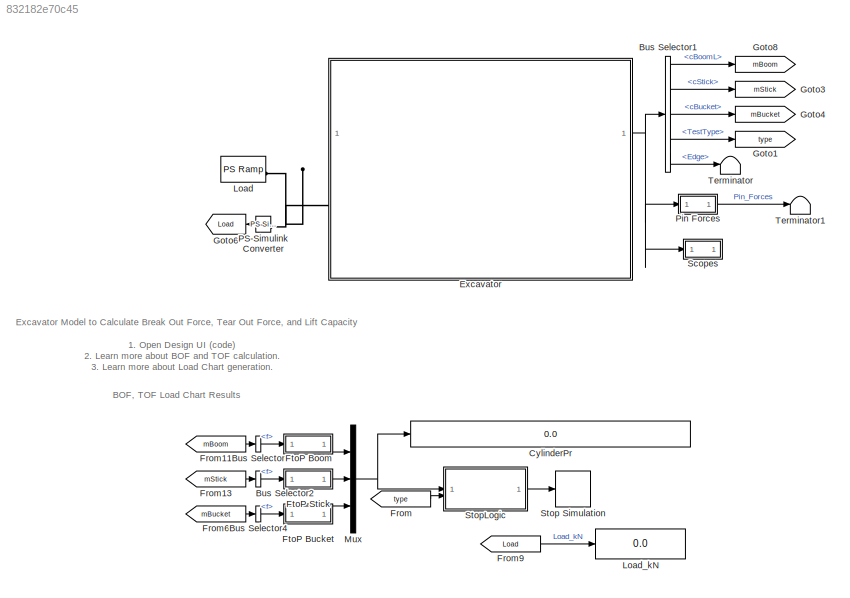
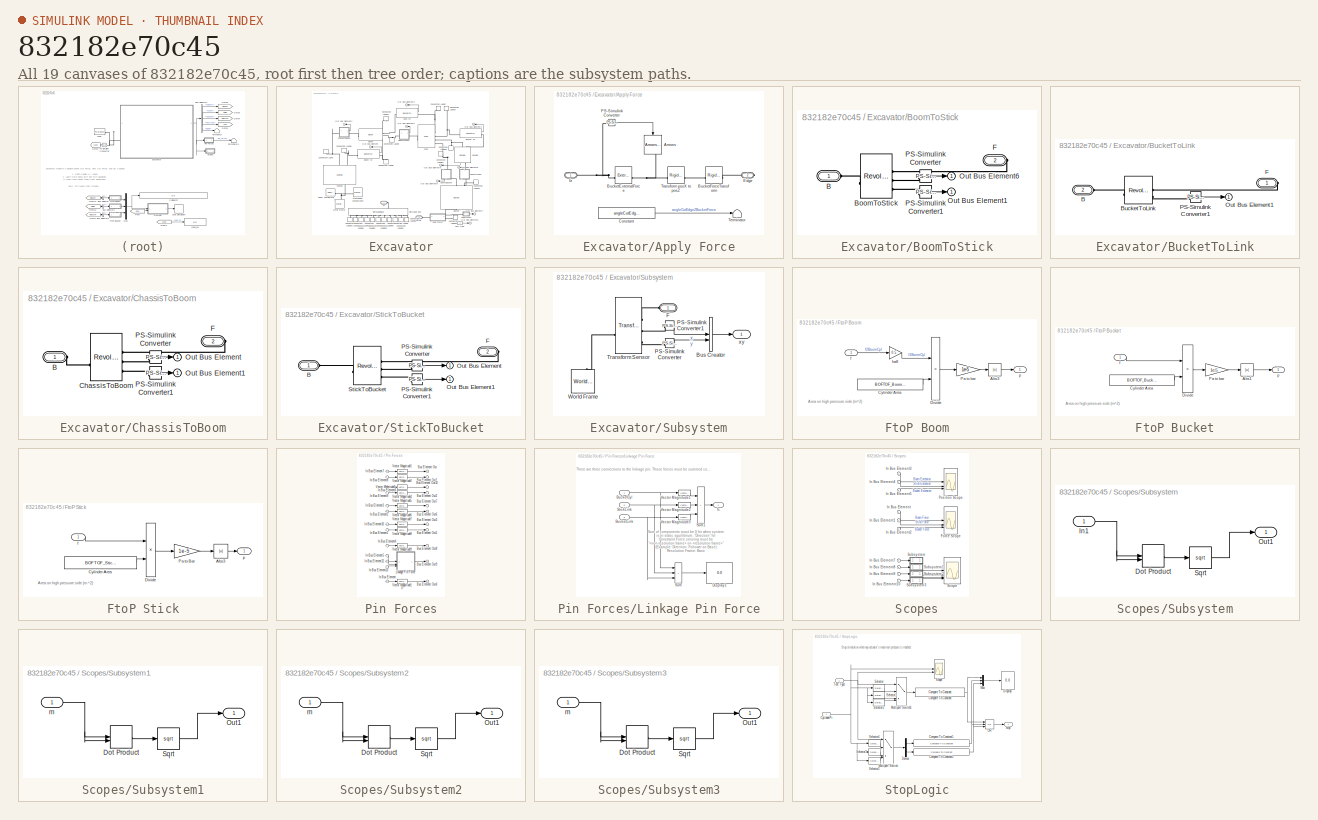
[diagram: thumbnail index - all 19 canvases of the model, root first then tree order]
MODEL slx_832182e70c45
KIND model
CONFIG AbsTol = 1e-3
CONFIG EnableMultiTasking = on
CONFIG PostLoadFcn = if(~exist('bucketForceAngleBOF','var'))\n   disp('Defining default force angles');\n   bucketForceAngleBOF = -11.7417;\n   bucketForceAngleTOF= -1.4472;\n   bucketForceAngleGravity = -55.5751;\nend
CONFIG SolverName = ode45
BLOCK [BusSelector] Bus Selector
  OutputSignals = f
BLOCK [BusSelector] Bus Selector1
  OutputSignals = cBoomL,cStick,cBucket,TestType,Edge
BLOCK [BusSelector] Bus Selector2
  OutputSignals = f
BLOCK [BusSelector] Bus Selector4
  OutputSignals = f
BLOCK [Display] CylinderPr
  Decimation = 1
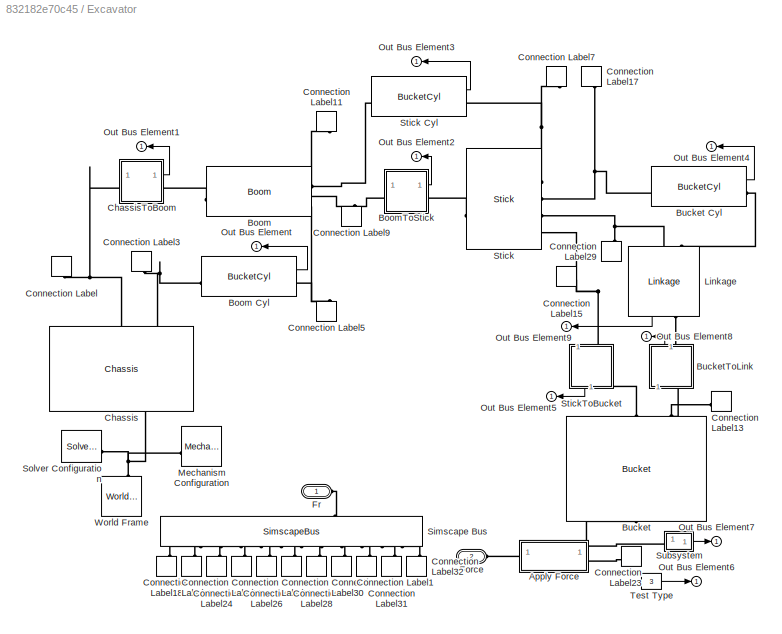
BLOCK [SubSystem] Excavator
  AttributesFormatString = Test Type: %<test_type>
BLOCK [SubSystem] Excavator/Apply Force
  AttributesFormatString = Test Type: %<test_type>
BLOCK [Reference] Excavator/Apply Force/Arrows  REF=Arrowhead_Lib/Arrows Variable PosNeg
  NameLocation = left
  SourceBlock = Arrowhead_Lib/Arrows Variable PosNeg
BLOCK [Reference] Excavator/Apply Force/BucketExternalForce  REF=sm_lib/Forces and
Torques/External Force
and Torque
  SourceBlock = sm_lib/Forces and\nTorques/External Force\nand Torque
  SourceType = External Force\nand Torque
BLOCK [Reference] Excavator/Apply Force/BucketForceTransform  REF=sm_lib/Frames and
Transforms/Rigid
Transform
  SourceBlock = sm_lib/Frames and\nTransforms/Rigid\nTransform
  SourceType = Rigid\nTransform
BLOCK [Constant] Excavator/Apply Force/Constant
  Value = angleCutEdge2BucketForce
BLOCK [PMIOPort] Excavator/Apply Force/Edge
  Port = 2
  Side = Right
BLOCK [Reference] Excavator/Apply Force/PS-Simulink Converter  REF=nesl_utility/PS-Simulink
Converter
  SourceBlock = nesl_utility/PS-Simulink\nConverter
  SourceType = PS-Simulink\nConverter
BLOCK [Terminator] Excavator/Apply Force/Terminator
BLOCK [Reference] Excavator/Apply Force/Transform posX to posZ  REF=sm_lib/Frames and
Transforms/Rigid
Transform
  NameLocation = top
  SourceBlock = sm_lib/Frames and\nTransforms/Rigid\nTransform
  SourceType = Rigid\nTransform
BLOCK [PMIOPort] Excavator/Apply Force/fz
  Side = Left
BLOCK [Reference] Excavator/Boom  REF=Excavator_Parts_Param_Lib/Boom
  SourceBlock = Excavator_Parts_Param_Lib/Boom
BLOCK [Reference] Excavator/Boom Cyl  REF=Excavator_Parts_Param_Lib/BucketCyl
  SourceBlock = Excavator_Parts_Param_Lib/BucketCyl
BLOCK [SubSystem] Excavator/BoomToStick
BLOCK [PMIOPort] Excavator/BoomToStick/B
  Side = Left
BLOCK [Reference] Excavator/BoomToStick/BoomToStick  REF=sm_lib/Joints/Revolute Joint
  SourceBlock = sm_lib/Joints/Revolute Joint
  SourceType = Revolute Joint
BLOCK [PMIOPort] Excavator/BoomToStick/F
  Port = 2
  Side = Right
BLOCK [Outport] Excavator/BoomToStick/Out Bus Element1
BLOCK [Outport] Excavator/BoomToStick/Out Bus Element6
BLOCK [Reference] Excavator/BoomToStick/PS-Simulink Converter  REF=nesl_utility/PS-Simulink
Converter
  SourceBlock = nesl_utility/PS-Simulink\nConverter
  SourceType = PS-Simulink\nConverter
BLOCK [Reference] Excavator/BoomToStick/PS-Simulink Converter1  REF=nesl_utility/PS-Simulink
Converter
  SourceBlock = nesl_utility/PS-Simulink\nConverter
  SourceType = PS-Simulink\nConverter
BLOCK [Reference] Excavator/Bucket  REF=Excavator_Parts_Param_Lib/Bucket
  NameLocation = left
  SourceBlock = Excavator_Parts_Param_Lib/Bucket
BLOCK [Reference] Excavator/Bucket Cyl  REF=Excavator_Parts_Param_Lib/BucketCyl
  SourceBlock = Excavator_Parts_Param_Lib/BucketCyl
BLOCK [SubSystem] Excavator/BucketToLink
  NameLocation = right
BLOCK [PMIOPort] Excavator/BucketToLink/B
  Port = 2
  Side = Left
BLOCK [Reference] Excavator/BucketToLink/BucketToLink  REF=sm_lib/Joints/Revolute Joint
  SourceBlock = sm_lib/Joints/Revolute Joint
  SourceType = Revolute Joint
BLOCK [PMIOPort] Excavator/BucketToLink/F
  Side = Right
BLOCK [Outport] Excavator/BucketToLink/Out Bus Element1
BLOCK [Reference] Excavator/BucketToLink/PS-Simulink Converter1  REF=nesl_utility/PS-Simulink
Converter
  SourceBlock = nesl_utility/PS-Simulink\nConverter
  SourceType = PS-Simulink\nConverter
BLOCK [Reference] Excavator/Chassis  REF=Excavator_Parts_Param_Lib/Chassis
  NameLocation = right
  SourceBlock = Excavator_Parts_Param_Lib/Chassis
BLOCK [SubSystem] Excavator/ChassisToBoom
BLOCK [PMIOPort] Excavator/ChassisToBoom/B
  Side = Left
BLOCK [Reference] Excavator/ChassisToBoom/ChassisToBoom  REF=sm_lib/Joints/Revolute Joint
  SourceBlock = sm_lib/Joints/Revolute Joint
  SourceType = Revolute Joint
BLOCK [PMIOPort] Excavator/ChassisToBoom/F
  Port = 2
  Side = Right
BLOCK [Outport] Excavator/ChassisToBoom/Out Bus Element
BLOCK [Outport] Excavator/ChassisToBoom/Out Bus Element1
BLOCK [Reference] Excavator/ChassisToBoom/PS-Simulink Converter  REF=nesl_utility/PS-Simulink
Converter
  SourceBlock = nesl_utility/PS-Simulink\nConverter
  SourceType = PS-Simulink\nConverter
BLOCK [Reference] Excavator/ChassisToBoom/PS-Simulink Converter1  REF=nesl_utility/PS-Simulink
Converter
  SourceBlock = nesl_utility/PS-Simulink\nConverter
  SourceType = PS-Simulink\nConverter
BLOCK [ConnectionLabel] Excavator/Connection Label
  Label = A1
  NameLocation = right
BLOCK [ConnectionLabel] Excavator/Connection Label1
  Label = C4
  NameLocation = left
BLOCK [ConnectionLabel] Excavator/Connection Label11
  Label = B2
  NameLocation = left
BLOCK [ConnectionLabel] Excavator/Connection Label13
  Label = D1
  NameLocation = top
BLOCK [ConnectionLabel] Excavator/Connection Label15
  Label = C4
BLOCK [ConnectionLabel] Excavator/Connection Label17
  Label = C2
  NameLocation = right
BLOCK [ConnectionLabel] Excavator/Connection Label18
  Label = A1
  NameLocation = right
BLOCK [ConnectionLabel] Excavator/Connection Label19
  Label = A2
  NameLocation = right
BLOCK [ConnectionLabel] Excavator/Connection Label23
  Label = D2
  NameLocation = top
BLOCK [ConnectionLabel] Excavator/Connection Label24
  Label = B1
  NameLocation = right
BLOCK [ConnectionLabel] Excavator/Connection Label25
  Label = B2
  NameLocation = left
BLOCK [ConnectionLabel] Excavator/Connection Label26
  Label = B3
  NameLocation = left
BLOCK [ConnectionLabel] Excavator/Connection Label27
  Label = C1
  NameLocation = left
BLOCK [ConnectionLabel] Excavator/Connection Label28
  Label = C2
  NameLocation = left
BLOCK [ConnectionLabel] Excavator/Connection Label29
  Label = C3
  NameLocation = right
BLOCK [ConnectionLabel] Excavator/Connection Label3
  Label = A2
  NameLocation = right
BLOCK [ConnectionLabel] Excavator/Connection Label30
  Label = C3
  NameLocation = left
BLOCK [ConnectionLabel] Excavator/Connection Label31
  Label = D1
  NameLocation = left
BLOCK [ConnectionLabel] Excavator/Connection Label32
  Label = D2
  NameLocation = left
BLOCK [ConnectionLabel] Excavator/Connection Label5
  Label = B1
  NameLocation = left
BLOCK [ConnectionLabel] Excavator/Connection Label7
  Label = C1
  NameLocation = left
BLOCK [ConnectionLabel] Excavator/Connection Label9
  Label = B3
  NameLocation = right
BLOCK [PMIOPort] Excavator/Force
  Port = 2
  Side = Left
BLOCK [PMIOPort] Excavator/Fr
  Side = Right
BLOCK [Reference] Excavator/Linkage  REF=Excavator_Parts_Param_Lib/Linkage
  NameLocation = right
  SourceBlock = Excavator_Parts_Param_Lib/Linkage
BLOCK [Reference] Excavator/Mechanism Configuration  REF=sm_lib/Utilities/Mechanism
Configuration
  AttributesFormatString = Gravity: %<UniformGravity>
  SourceBlock = sm_lib/Utilities/Mechanism\nConfiguration
  SourceType = Mechanism\nConfiguration
BLOCK [Outport] Excavator/Out Bus Element
  NameLocation = top
BLOCK [Outport] Excavator/Out Bus Element1
  NameLocation = top
BLOCK [Outport] Excavator/Out Bus Element2
  NameLocation = top
BLOCK [Outport] Excavator/Out Bus Element3
  NameLocation = top
BLOCK [Outport] Excavator/Out Bus Element4
  NameLocation = top
BLOCK [Outport] Excavator/Out Bus Element5
  NameLocation = top
BLOCK [Outport] Excavator/Out Bus Element6
  NameLocation = top
BLOCK [Outport] Excavator/Out Bus Element7
  NameLocation = top
BLOCK [Outport] Excavator/Out Bus Element8
  NameLocation = top
BLOCK [Outport] Excavator/Out Bus Element9
  NameLocation = top
BLOCK [SimscapeBus] Excavator/Simscape Bus
  HierarchyStrings = A1;A2;B1;B2;B3;C1;C2;C3;C4;D1;D2
  NameLocation = left
BLOCK [Reference] Excavator/Solver Configuration  REF=nesl_utility/Solver
Configuration
  SourceBlock = nesl_utility/Solver\nConfiguration
  SourceType = Solver\nConfiguration
BLOCK [Reference] Excavator/Stick  REF=Excavator_Parts_Param_Lib/Stick
  SourceBlock = Excavator_Parts_Param_Lib/Stick
BLOCK [Reference] Excavator/Stick Cyl  REF=Excavator_Parts_Param_Lib/BucketCyl
  SourceBlock = Excavator_Parts_Param_Lib/BucketCyl
BLOCK [SubSystem] Excavator/StickToBucket
  NameLocation = left
BLOCK [PMIOPort] Excavator/StickToBucket/B
  Side = Left
BLOCK [PMIOPort] Excavator/StickToBucket/F
  Port = 2
  Side = Right
BLOCK [Outport] Excavator/StickToBucket/Out Bus Element
BLOCK [Outport] Excavator/StickToBucket/Out Bus Element1
BLOCK [Reference] Excavator/StickToBucket/PS-Simulink Converter  REF=nesl_utility/PS-Simulink
Converter
  SourceBlock = nesl_utility/PS-Simulink\nConverter
  SourceType = PS-Simulink\nConverter
BLOCK [Reference] Excavator/StickToBucket/PS-Simulink Converter1  REF=nesl_utility/PS-Simulink
Converter
  SourceBlock = nesl_utility/PS-Simulink\nConverter
  SourceType = PS-Simulink\nConverter
BLOCK [Reference] Excavator/StickToBucket/StickToBucket  REF=sm_lib/Joints/Revolute Joint
  SourceBlock = sm_lib/Joints/Revolute Joint
  SourceType = Revolute Joint
BLOCK [SubSystem] Excavator/Subsystem
BLOCK [BusCreator] Excavator/Subsystem/Bus Creator
  DisplayOption = bar
  InheritFromInputs = on
  Inputs = 2
BLOCK [PMIOPort] Excavator/Subsystem/F
  Side = Left
BLOCK [Reference] Excavator/Subsystem/PS-Simulink Converter  REF=nesl_utility/PS-Simulink
Converter
  SourceBlock = nesl_utility/PS-Simulink\nConverter
  SourceType = PS-Simulink\nConverter
BLOCK [Reference] Excavator/Subsystem/PS-Simulink Converter1  REF=nesl_utility/PS-Simulink
Converter
  SourceBlock = nesl_utility/PS-Simulink\nConverter
  SourceType = PS-Simulink\nConverter
BLOCK [Reference] Excavator/Subsystem/Transform Sensor  REF=sm_lib/Frames and
Transforms/Transform
Sensor
  SourceBlock = sm_lib/Frames and\nTransforms/Transform\nSensor
  SourceType = Transform\nSensor
BLOCK [Reference] Excavator/Subsystem/World Frame  REF=sm_lib/Frames and
Transforms/World Frame
  NameLocation = right
  SourceBlock = sm_lib/Frames and\nTransforms/World Frame
  SourceType = World Frame
BLOCK [Outport] Excavator/Subsystem/xy
BLOCK [Constant] Excavator/Test Type
  Value = 3
BLOCK [Reference] Excavator/World Frame  REF=sm_lib/Frames and
Transforms/World Frame
  NameLocation = left
  SourceBlock = sm_lib/Frames and\nTransforms/World Frame
  SourceType = World Frame
BLOCK [From] From
  GotoTag = type
BLOCK [From] From11
  GotoTag = mBoom
BLOCK [From] From13
  GotoTag = mStick
BLOCK [From] From6
  GotoTag = mBucket
BLOCK [From] From9
  GotoTag = Load
BLOCK [SubSystem] FtoP Boom
BLOCK [Abs] FtoP Boom/Abs3
  SaturateOnIntegerOverflow = off
BLOCK [Constant] FtoP Boom/Cylinder Area
  NameLocation = top
  Value = BOFTOF_BoomCylArea*1e-6
BLOCK [Product] FtoP Boom/Divide
  Inputs = */
BLOCK [Gain] FtoP Boom/Pa to bar
  Gain = 1e-5
BLOCK [Inport] FtoP Boom/f
BLOCK [Gain] FtoP Boom/half
  Gain = 0.5
BLOCK [Outport] FtoP Boom/p
BLOCK [SubSystem] FtoP Bucket
BLOCK [Abs] FtoP Bucket/Abs1
  SaturateOnIntegerOverflow = off
BLOCK [Constant] FtoP Bucket/Cylinder Area
  NameLocation = top
  Value = BOFTOF_BucketCylArea*1e-6
BLOCK [Product] FtoP Bucket/Divide
  Inputs = */
BLOCK [Gain] FtoP Bucket/Pa to bar
  Gain = 1e-5
BLOCK [Inport] FtoP Bucket/f
BLOCK [Outport] FtoP Bucket/p
BLOCK [SubSystem] FtoP Stick
BLOCK [Abs] FtoP Stick/Abs3
  SaturateOnIntegerOverflow = off
BLOCK [Constant] FtoP Stick/Cylinder Area
  NameLocation = top
  Value = BOFTOF_StickCylArea*1e-6
BLOCK [Product] FtoP Stick/Divide
  Inputs = */
BLOCK [Gain] FtoP Stick/Pa to Bar
  Gain = 1e-5
BLOCK [Inport] FtoP Stick/f
BLOCK [Outport] FtoP Stick/p
BLOCK [Goto] Goto1
  GotoTag = type
  NameLocation = top
BLOCK [Goto] Goto3
  GotoTag = mStick
BLOCK [Goto] Goto4
  GotoTag = mBucket
  NameLocation = top
BLOCK [Goto] Goto6
  GotoTag = Load
BLOCK [Goto] Goto8
  GotoTag = mBoom
BLOCK [Reference] Load  REF=fl_lib/Physical Signals/Sources/PS Ramp
  SourceBlock = fl_lib/Physical Signals/Sources/PS Ramp
  SourceType = PS Ramp
BLOCK [Display] Load_kN
  Decimation = 1
BLOCK [Mux] Mux
  DisplayOption = bar
  Inputs = 3
BLOCK [Reference] PS-Simulink Converter  REF=nesl_utility/PS-Simulink
Converter
  SourceBlock = nesl_utility/PS-Simulink\nConverter
  SourceType = PS-Simulink\nConverter
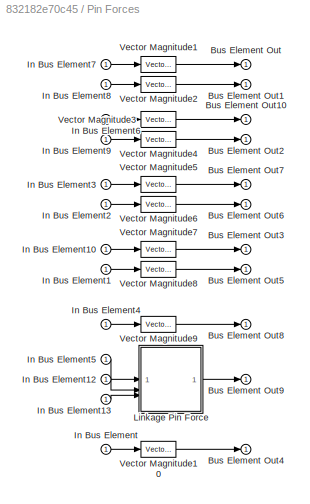
BLOCK [SubSystem] Pin Forces
BLOCK [Outport] Pin Forces/Bus Element Out
BLOCK [Outport] Pin Forces/Bus Element Out1
BLOCK [Outport] Pin Forces/Bus Element Out10
BLOCK [Outport] Pin Forces/Bus Element Out2
BLOCK [Outport] Pin Forces/Bus Element Out3
BLOCK [Outport] Pin Forces/Bus Element Out4
BLOCK [Outport] Pin Forces/Bus Element Out5
BLOCK [Outport] Pin Forces/Bus Element Out6
BLOCK [Outport] Pin Forces/Bus Element Out7
BLOCK [Outport] Pin Forces/Bus Element Out8
BLOCK [Outport] Pin Forces/Bus Element Out9
BLOCK [Inport] Pin Forces/In Bus Element
BLOCK [Inport] Pin Forces/In Bus Element1
BLOCK [Inport] Pin Forces/In Bus Element10
BLOCK [Inport] Pin Forces/In Bus Element12
BLOCK [Inport] Pin Forces/In Bus Element13
BLOCK [Inport] Pin Forces/In Bus Element2
BLOCK [Inport] Pin Forces/In Bus Element3
BLOCK [Inport] Pin Forces/In Bus Element4
BLOCK [Inport] Pin Forces/In Bus Element5
BLOCK [Inport] Pin Forces/In Bus Element6
BLOCK [Inport] Pin Forces/In Bus Element7
BLOCK [Inport] Pin Forces/In Bus Element8
BLOCK [Inport] Pin Forces/In Bus Element9
BLOCK [SubSystem] Pin Forces/Linkage Pin Force
BLOCK [Inport] Pin Forces/Linkage Pin Force/BucketCyl
BLOCK [Inport] Pin Forces/Linkage Pin Force/BucketLink
  Port = 3
BLOCK [Display] Pin Forces/Linkage Pin Force/Display3
  Decimation = 1
BLOCK [Inport] Pin Forces/Linkage Pin Force/StickLink
  Port = 2
BLOCK [Sum] Pin Forces/Linkage Pin Force/Sum
  IconShape = rectangular
  Inputs = +++
BLOCK [Sum] Pin Forces/Linkage Pin Force/Sum1
  IconShape = rectangular
  Inputs = +++
BLOCK [Reference] Pin Forces/Linkage Pin Force/Vector Magnitude1  REF=Excavator_Parts_Param_Lib/Vector Magnitude
  SourceBlock = Excavator_Parts_Param_Lib/Vector Magnitude
  SourceType = SubSystem
BLOCK [Reference] Pin Forces/Linkage Pin Force/Vector Magnitude2  REF=Excavator_Parts_Param_Lib/Vector Magnitude
  SourceBlock = Excavator_Parts_Param_Lib/Vector Magnitude
  SourceType = SubSystem
BLOCK [Reference] Pin Forces/Linkage Pin Force/Vector Magnitude3  REF=Excavator_Parts_Param_Lib/Vector Magnitude
  SourceBlock = Excavator_Parts_Param_Lib/Vector Magnitude
  SourceType = SubSystem
BLOCK [Outport] Pin Forces/Linkage Pin Force/fc
BLOCK [Reference] Pin Forces/Vector Magnitude1  REF=Excavator_Parts_Param_Lib/Vector Magnitude
  SourceBlock = Excavator_Parts_Param_Lib/Vector Magnitude
  SourceType = SubSystem
BLOCK [Reference] Pin Forces/Vector Magnitude10  REF=Excavator_Parts_Param_Lib/Vector Magnitude
  SourceBlock = Excavator_Parts_Param_Lib/Vector Magnitude
  SourceType = SubSystem
BLOCK [Reference] Pin Forces/Vector Magnitude2  REF=Excavator_Parts_Param_Lib/Vector Magnitude
  SourceBlock = Excavator_Parts_Param_Lib/Vector Magnitude
  SourceType = SubSystem
BLOCK [Reference] Pin Forces/Vector Magnitude3  REF=Excavator_Parts_Param_Lib/Vector Magnitude
  SourceBlock = Excavator_Parts_Param_Lib/Vector Magnitude
  SourceType = SubSystem
BLOCK [Reference] Pin Forces/Vector Magnitude4  REF=Excavator_Parts_Param_Lib/Vector Magnitude
  SourceBlock = Excavator_Parts_Param_Lib/Vector Magnitude
  SourceType = SubSystem
BLOCK [Reference] Pin Forces/Vector Magnitude5  REF=Excavator_Parts_Param_Lib/Vector Magnitude
  SourceBlock = Excavator_Parts_Param_Lib/Vector Magnitude
  SourceType = SubSystem
BLOCK [Reference] Pin Forces/Vector Magnitude6  REF=Excavator_Parts_Param_Lib/Vector Magnitude
  SourceBlock = Excavator_Parts_Param_Lib/Vector Magnitude
  SourceType = SubSystem
BLOCK [Reference] Pin Forces/Vector Magnitude7  REF=Excavator_Parts_Param_Lib/Vector Magnitude
  SourceBlock = Excavator_Parts_Param_Lib/Vector Magnitude
  SourceType = SubSystem
BLOCK [Reference] Pin Forces/Vector Magnitude8  REF=Excavator_Parts_Param_Lib/Vector Magnitude
  SourceBlock = Excavator_Parts_Param_Lib/Vector Magnitude
  SourceType = SubSystem
BLOCK [Reference] Pin Forces/Vector Magnitude9  REF=Excavator_Parts_Param_Lib/Vector Magnitude
  SourceBlock = Excavator_Parts_Param_Lib/Vector Magnitude
  SourceType = SubSystem
BLOCK [SubSystem] Scopes
BLOCK [Scope] Scopes/Force Scope
  ActiveDisplayYMaximum = 1.89358945982E+6
  ActiveDisplayYMinimum = -2.01855993393E+6
  DataLoggingVariableName = ScopeData1
  Floating = off
  GraphicalSettings = {"GraphicalSettings":{"LegacySettings":true,"Style":{"AxesScalingProperties":{"ScaleAxesLimitsAtStop":false},"Style":{"AxesColor":"[0 0 0]","ChannelNames":[""],"ColorOrder":"[1 0.909803921568627 0.392156862745098;0.149019607843137 0.549019607843137 0.866666666666667;0.96078431372549 0.466666666666667 0.16078431372549;0.286274509803922 0.858823529411765 0.250980392156863;0.752941176470588 0.3607843...<+582ch>
  MultipleDisplayCache = [{"MaxYLimMag":2.01855993393E+6,"MaxYLimReal":1.89358945982E+6,"MinYLimMag":0,"MinYLimReal":-2.01855993393E+6,"PlotAsMagnitudePhase":false,"ShowGrid":true,"ShowLegend":true,"Title":"Cylinder Forces","YLabel":""}]
  NumInputPorts = 3
  ShowLegend = on
  Title = Cylinder Forces
  WasSavedAsWebScope = on
  WindowPosition = [940 357 560 421]
BLOCK [Inport] Scopes/In Bus Element
BLOCK [Inport] Scopes/In Bus Element1
BLOCK [Inport] Scopes/In Bus Element10
BLOCK [Inport] Scopes/In Bus Element2
BLOCK [Inport] Scopes/In Bus Element3
BLOCK [Inport] Scopes/In Bus Element4
BLOCK [Inport] Scopes/In Bus Element5
BLOCK [Inport] Scopes/In Bus Element7
BLOCK [Inport] Scopes/In Bus Element8
BLOCK [Inport] Scopes/In Bus Element9
BLOCK [Scope] Scopes/Position Scope
  ActiveDisplayYMaximum = 4067.06604
  ActiveDisplayYMinimum = 2036.75361
  Floating = off
  GraphicalSettings = {"GraphicalSettings":{"LegacySettings":true,"Style":{"Style":{"AxesColor":"[0 0 0]","ChannelNames":[""],"ColorOrder":"[1 0.909803921568627 0.392156862745098;0.149019607843137 0.549019607843137 0.866666666666667;0.96078431372549 0.466666666666667 0.16078431372549;0.286274509803922 0.858823529411765 0.250980392156863;0.752941176470588 0.36078431372549 0.984313725490196;0.423529411764706 0.9568627450...<+526ch>
  MultipleDisplayCache = [{"MaxYLimMag":4067.06604,"MaxYLimReal":4067.06604,"MinYLimMag":2036.75361,"MinYLimReal":2036.75361,"PlotAsMagnitudePhase":false,"ShowGrid":true,"ShowLegend":true,"Title":"%<SignalLabel>","YLabel":""}]
  NumInputPorts = 3
  ShowLegend = on
  WasSavedAsWebScope = on
  WindowPosition = [940 357 560 421]
BLOCK [Scope] Scopes/Scope
  ActiveDisplayYMaximum = 2.03284930056E+6
  ActiveDisplayYMinimum = -225872.14451
  DataLoggingVariableName = ScopeData1
  Floating = off
  GraphicalSettings = {"GraphicalSettings":{"LegacySettings":true,"Style":{"Style":{"AxesColor":"[0 0 0]","ChannelNames":[""],"ColorOrder":"[1 0.909803921568627 0.392156862745098;0.149019607843137 0.549019607843137 0.866666666666667;0.96078431372549 0.466666666666667 0.16078431372549;0.286274509803922 0.858823529411765 0.250980392156863;0.752941176470588 0.36078431372549 0.984313725490196;0.423529411764706 0.9568627450...<+473ch>
  MultipleDisplayCache = [{"MaxYLimMag":2.03284930056E+6,"MaxYLimReal":2.03284930056E+6,"MinYLimMag":0,"MinYLimReal":-225872.14451,"PlotAsMagnitudePhase":false,"ShowGrid":true,"ShowLegend":true,"Title":"%<SignalLabel>","YLabel":""}]
  NumInputPorts = 4
  ShowLegend = on
  WasSavedAsWebScope = on
  WindowPosition = [940 358 560 420]
BLOCK [SubSystem] Scopes/Subsystem
BLOCK [DotProduct] Scopes/Subsystem/Dot Product
  OutDataTypeStr = Inherit: Inherit via internal rule
BLOCK [Inport] Scopes/Subsystem/In1
BLOCK [Outport] Scopes/Subsystem/Out1
BLOCK [Sqrt] Scopes/Subsystem/Sqrt
BLOCK [SubSystem] Scopes/Subsystem1
BLOCK [DotProduct] Scopes/Subsystem1/Dot Product
  OutDataTypeStr = Inherit: Inherit via internal rule
BLOCK [Outport] Scopes/Subsystem1/Out1
BLOCK [Sqrt] Scopes/Subsystem1/Sqrt
BLOCK [Inport] Scopes/Subsystem1/m
BLOCK [SubSystem] Scopes/Subsystem2
BLOCK [DotProduct] Scopes/Subsystem2/Dot Product
  OutDataTypeStr = Inherit: Inherit via internal rule
BLOCK [Outport] Scopes/Subsystem2/Out1
BLOCK [Sqrt] Scopes/Subsystem2/Sqrt
BLOCK [Inport] Scopes/Subsystem2/m
BLOCK [SubSystem] Scopes/Subsystem3
BLOCK [DotProduct] Scopes/Subsystem3/Dot Product
  OutDataTypeStr = Inherit: Inherit via internal rule
BLOCK [Outport] Scopes/Subsystem3/Out1
BLOCK [Sqrt] Scopes/Subsystem3/Sqrt
BLOCK [Inport] Scopes/Subsystem3/m
BLOCK [Stop] Stop Simulation
BLOCK [SubSystem] StopLogic
BLOCK [Reference] StopLogic/Compare To Constant  REF=simulink/Logic and Bit
Operations/Compare
To Constant
  SourceBlock = simulink/Logic and Bit\nOperations/Compare\nTo Constant
  SourceType = Compare To Constant
BLOCK [Reference] StopLogic/Compare To Constant1  REF=simulink/Logic and Bit
Operations/Compare
To Constant
  SourceBlock = simulink/Logic and Bit\nOperations/Compare\nTo Constant
  SourceType = Compare To Constant
BLOCK [Reference] StopLogic/Compare To Constant2  REF=simulink/Logic and Bit
Operations/Compare
To Constant
  SourceBlock = simulink/Logic and Bit\nOperations/Compare\nTo Constant
  SourceType = Compare To Constant
BLOCK [Inport] StopLogic/CylinderPr
BLOCK [Demux] StopLogic/Demux
  Outputs = 2
BLOCK [Display] StopLogic/Display
  Decimation = 1
BLOCK [MultiPortSwitch] StopLogic/Multiport Switch
  InputSameDT = off
  SaturateOnIntegerOverflow = off
BLOCK [MultiPortSwitch] StopLogic/Multiport Switch1
  InputSameDT = off
  SaturateOnIntegerOverflow = off
BLOCK [Mux] StopLogic/Mux
  DisplayOption = bar
  Inputs = 3
BLOCK [Logic] StopLogic/OR
  AllPortsSameDT = off
  IconShape = distinctive
  Inputs = 3
  Operator = OR
  OutDataTypeStr = boolean
BLOCK [Scope] StopLogic/Scope
  ActiveDisplayYMaximum = 450
  ActiveDisplayYMinimum = -50
  DataLoggingVariableName = ScopeData1
  Floating = off
  GraphicalSettings = {"GraphicalSettings":{"LegacySettings":true,"Style":{"Style":{"AxesColor":"[0 0 0]","ChannelNames":["",""],"ColorOrder":"[1 0.909803921568627 0.392156862745098;0.149019607843137 0.549019607843137 0.866666666666667;0.96078431372549 0.466666666666667 0.16078431372549;0.286274509803922 0.858823529411765 0.250980392156863;0.752941176470588 0.36078431372549 0.984313725490196;0.423529411764706 0.9568627...<+463ch>
  LayoutDimensionsString = [2 1]
  MultipleDisplayCache = [{"MaxYLimMag":450,"MaxYLimReal":450,"MinYLimMag":0,"MinYLimReal":-50,"PlotAsMagnitudePhase":false,"ShowGrid":true,"ShowLegend":false,"Title":"%<SignalLabel>","YLabel":""},{"MaxYLimMag":10,"MaxYLimReal":362.55632,"MinYLimMag":0,"MinYLimReal":-40.28404,"PlotAsMagnitudePhase":false,"ShowGrid":true,"ShowLegend":false,"Title":"%<SignalLabel>","YLabel":""}]
  NumInputPorts = 2
  WasSavedAsWebScope = on
  WindowPosition = [940 357 560 421]
BLOCK [Selector] StopLogic/Selector
  IndexOptions = Index vector (dialog)
  Indices = 3
  InputPortWidth = 3
  OutputSizes = 1
BLOCK [Selector] StopLogic/Selector1
  IndexOptions = Index vector (dialog)
  Indices = 2
  InputPortWidth = 3
  OutputSizes = 1
BLOCK [Selector] StopLogic/Selector2
  IndexOptions = Index vector (dialog)
  Indices = [2,3]
  InputPortWidth = 3
  OutputSizes = 1
BLOCK [Selector] StopLogic/Selector3
  IndexOptions = Index vector (dialog)
  Indices = [1,3]
  InputPortWidth = 3
  OutputSizes = 1
BLOCK [Selector] StopLogic/Selector4
  IndexOptions = Index vector (dialog)
  Indices = [1,2]
  InputPortWidth = 3
  OutputSizes = 1
BLOCK [Selector] StopLogic/Selector5
  IndexOptions = Index vector (dialog)
  Indices = 1
  InputPortWidth = 3
  OutputSizes = 1
BLOCK [Inport] StopLogic/Test Type
  Port = 2
BLOCK [Outport] StopLogic/stop
BLOCK [Terminator] Terminator
BLOCK [Terminator] Terminator1
ANNOTATION (root): 1. Open Design UI ( code ) 2. Learn more about BOF and TOF calculation. 3. Learn more about Load Chart generation.
ANNOTATION (root): BOF, TOF Load Chart Results
ANNOTATION (root): Excavator Model to Calculate Break Out Force, Tear Out Force, and Lift Capacity
ANNOTATION FtoP Boom: Area on high pressure side (m^2)
ANNOTATION FtoP Bucket: Area on high pressure side (m^2)
ANNOTATION FtoP Stick: Area on high pressure side (m^2)
ANNOTATION Pin Forces/Linkage Pin Force: Sum of components must be 0 for when system is in static equilibrium. "Direction" for Constraint Force sensing must be " on " (Example: Direction: Follower on Base) Resolution Frame: Base
ANNOTATION Pin Forces/Linkage Pin Force: There are three connections to the linkage pin. Those forces must be summed consistently to calculate the load on the pin.
ANNOTATION StopLogic: Stop simulation when any actuator's maximum pressure is reached.
LINE Bus Selector1:1 -> Goto8:1
LINE Bus Selector1:2 -> Goto3:1
LINE Bus Selector1:3 -> Goto4:1
LINE Bus Selector1:4 -> Goto1:1
LINE Bus Selector1:5 -> Terminator:1
LINE Bus Selector2:1 -> FtoP Stick:1
LINE Bus Selector4:1 -> FtoP Bucket:1
LINE Bus Selector:1 -> FtoP Boom:1
LINE Excavator/Apply Force/Constant:1 -> Excavator/Apply Force/Terminator:1
LINE Excavator/Apply Force/PS-Simulink Converter:1 -> Excavator/Apply Force/Arrows:1
LINE Excavator/Boom Cyl:1 -> Excavator/Out Bus Element:1
LINE Excavator/BoomToStick/PS-Simulink Converter1:1 -> Excavator/BoomToStick/Out Bus Element1:1
LINE Excavator/BoomToStick/PS-Simulink Converter:1 -> Excavator/BoomToStick/Out Bus Element6:1
LINE Excavator/BoomToStick:1 -> Excavator/Out Bus Element2:1
LINE Excavator/Bucket Cyl:1 -> Excavator/Out Bus Element4:1
LINE Excavator/BucketToLink/PS-Simulink Converter1:1 -> Excavator/BucketToLink/Out Bus Element1:1
LINE Excavator/BucketToLink:1 -> Excavator/Out Bus Element8:1
LINE Excavator/ChassisToBoom/PS-Simulink Converter1:1 -> Excavator/ChassisToBoom/Out Bus Element1:1
LINE Excavator/ChassisToBoom/PS-Simulink Converter:1 -> Excavator/ChassisToBoom/Out Bus Element:1
LINE Excavator/ChassisToBoom:1 -> Excavator/Out Bus Element1:1
LINE Excavator/Linkage:1 -> Excavator/Out Bus Element9:1
LINE Excavator/Stick Cyl:1 -> Excavator/Out Bus Element3:1
LINE Excavator/StickToBucket/PS-Simulink Converter1:1 -> Excavator/StickToBucket/Out Bus Element1:1
LINE Excavator/StickToBucket/PS-Simulink Converter:1 -> Excavator/StickToBucket/Out Bus Element:1
LINE Excavator/StickToBucket:1 -> Excavator/Out Bus Element5:1
LINE Excavator/Subsystem/Bus Creator:1 -> Excavator/Subsystem/xy:1
LINE Excavator/Subsystem/PS-Simulink Converter1:1 -> Excavator/Subsystem/Bus Creator:1
LINE Excavator/Subsystem/PS-Simulink Converter:1 -> Excavator/Subsystem/Bus Creator:2
LINE Excavator/Subsystem:1 -> Excavator/Out Bus Element7:1
LINE Excavator/Test Type:1 -> Excavator/Out Bus Element6:1
NET Excavator:1 -> Bus Selector1:1, Pin Forces:1, Scopes:1
LINE From11:1 -> Bus Selector:1
LINE From13:1 -> Bus Selector2:1
LINE From6:1 -> Bus Selector4:1
LINE From9:1 -> Load_kN:1
LINE From:1 -> StopLogic:2
LINE FtoP Boom/Abs3:1 -> FtoP Boom/p:1
LINE FtoP Boom/Cylinder Area:1 -> FtoP Boom/Divide:2
LINE FtoP Boom/Divide:1 -> FtoP Boom/Pa to bar:1
LINE FtoP Boom/Pa to bar:1 -> FtoP Boom/Abs3:1
LINE FtoP Boom/f:1 -> FtoP Boom/half:1
LINE FtoP Boom/half:1 -> FtoP Boom/Divide:1
LINE FtoP Boom:1 -> Mux:1
LINE FtoP Bucket/Abs1:1 -> FtoP Bucket/p:1
LINE FtoP Bucket/Cylinder Area:1 -> FtoP Bucket/Divide:2
LINE FtoP Bucket/Divide:1 -> FtoP Bucket/Pa to bar:1
LINE FtoP Bucket/Pa to bar:1 -> FtoP Bucket/Abs1:1
LINE FtoP Bucket/f:1 -> FtoP Bucket/Divide:1
LINE FtoP Bucket:1 -> Mux:3
LINE FtoP Stick/Abs3:1 -> FtoP Stick/p:1
LINE FtoP Stick/Cylinder Area:1 -> FtoP Stick/Divide:2
LINE FtoP Stick/Divide:1 -> FtoP Stick/Pa to Bar:1
LINE FtoP Stick/Pa to Bar:1 -> FtoP Stick/Abs3:1
LINE FtoP Stick/f:1 -> FtoP Stick/Divide:1
LINE FtoP Stick:1 -> Mux:2
NET Mux:1 -> CylinderPr:1, StopLogic:1
LINE PS-Simulink Converter:1 -> Goto6:1
LINE Pin Forces/In Bus Element10:1 -> Pin Forces/Vector Magnitude7:1
LINE Pin Forces/In Bus Element12:1 -> Pin Forces/Linkage Pin Force:2
LINE Pin Forces/In Bus Element13:1 -> Pin Forces/Linkage Pin Force:3
LINE Pin Forces/In Bus Element1:1 -> Pin Forces/Vector Magnitude8:1
LINE Pin Forces/In Bus Element2:1 -> Pin Forces/Vector Magnitude6:1
LINE Pin Forces/In Bus Element3:1 -> Pin Forces/Vector Magnitude5:1
LINE Pin Forces/In Bus Element4:1 -> Pin Forces/Vector Magnitude9:1
LINE Pin Forces/In Bus Element5:1 -> Pin Forces/Linkage Pin Force:1
LINE Pin Forces/In Bus Element6:1 -> Pin Forces/Vector Magnitude3:1
LINE Pin Forces/In Bus Element7:1 -> Pin Forces/Vector Magnitude1:1
LINE Pin Forces/In Bus Element8:1 -> Pin Forces/Vector Magnitude2:1
LINE Pin Forces/In Bus Element9:1 -> Pin Forces/Vector Magnitude4:1
LINE Pin Forces/In Bus Element:1 -> Pin Forces/Vector Magnitude10:1
NET Pin Forces/Linkage Pin Force/BucketCyl:1 -> Pin Forces/Linkage Pin Force/Sum:1, Pin Forces/Linkage Pin Force/Vector Magnitude1:1
NET Pin Forces/Linkage Pin Force/BucketLink:1 -> Pin Forces/Linkage Pin Force/Sum:3, Pin Forces/Linkage Pin Force/Vector Magnitude3:1
NET Pin Forces/Linkage Pin Force/StickLink:1 -> Pin Forces/Linkage Pin Force/Sum:2, Pin Forces/Linkage Pin Force/Vector Magnitude2:1
LINE Pin Forces/Linkage Pin Force/Sum1:1 -> Pin Forces/Linkage Pin Force/fc:1
LINE Pin Forces/Linkage Pin Force/Sum:1 -> Pin Forces/Linkage Pin Force/Display3:1
LINE Pin Forces/Linkage Pin Force/Vector Magnitude1:1 -> Pin Forces/Linkage Pin Force/Sum1:1
LINE Pin Forces/Linkage Pin Force/Vector Magnitude2:1 -> Pin Forces/Linkage Pin Force/Sum1:2
LINE Pin Forces/Linkage Pin Force/Vector Magnitude3:1 -> Pin Forces/Linkage Pin Force/Sum1:3
LINE Pin Forces/Linkage Pin Force:1 -> Pin Forces/Bus Element Out9:1
LINE Pin Forces/Vector Magnitude10:1 -> Pin Forces/Bus Element Out4:1
LINE Pin Forces/Vector Magnitude1:1 -> Pin Forces/Bus Element Out:1
LINE Pin Forces/Vector Magnitude2:1 -> Pin Forces/Bus Element Out1:1
LINE Pin Forces/Vector Magnitude3:1 -> Pin Forces/Bus Element Out10:1
LINE Pin Forces/Vector Magnitude4:1 -> Pin Forces/Bus Element Out2:1
LINE Pin Forces/Vector Magnitude5:1 -> Pin Forces/Bus Element Out7:1
LINE Pin Forces/Vector Magnitude6:1 -> Pin Forces/Bus Element Out6:1
LINE Pin Forces/Vector Magnitude7:1 -> Pin Forces/Bus Element Out3:1
LINE Pin Forces/Vector Magnitude8:1 -> Pin Forces/Bus Element Out5:1
LINE Pin Forces/Vector Magnitude9:1 -> Pin Forces/Bus Element Out8:1
LINE Pin Forces:1 -> Terminator1:1
LINE Scopes/In Bus Element10:1 -> Scopes/Subsystem3:1
LINE Scopes/In Bus Element1:1 -> Scopes/Force Scope:2
LINE Scopes/In Bus Element2:1 -> Scopes/Force Scope:3
LINE Scopes/In Bus Element3:1 -> Scopes/Position Scope:1
LINE Scopes/In Bus Element4:1 -> Scopes/Position Scope:2
LINE Scopes/In Bus Element5:1 -> Scopes/Position Scope:3
LINE Scopes/In Bus Element7:1 -> Scopes/Subsystem:1
LINE Scopes/In Bus Element8:1 -> Scopes/Subsystem1:1
LINE Scopes/In Bus Element9:1 -> Scopes/Subsystem2:1
LINE Scopes/In Bus Element:1 -> Scopes/Force Scope:1
LINE Scopes/Subsystem/Dot Product:1 -> Scopes/Subsystem/Sqrt:1
NET Scopes/Subsystem/In1:1 -> Scopes/Subsystem/Dot Product:1, Scopes/Subsystem/Dot Product:2
LINE Scopes/Subsystem/Sqrt:1 -> Scopes/Subsystem/Out1:1
LINE Scopes/Subsystem1/Dot Product:1 -> Scopes/Subsystem1/Sqrt:1
LINE Scopes/Subsystem1/Sqrt:1 -> Scopes/Subsystem1/Out1:1
NET Scopes/Subsystem1/m:1 -> Scopes/Subsystem1/Dot Product:1, Scopes/Subsystem1/Dot Product:2
LINE Scopes/Subsystem1:1 -> Scopes/Scope:2
LINE Scopes/Subsystem2/Dot Product:1 -> Scopes/Subsystem2/Sqrt:1
LINE Scopes/Subsystem2/Sqrt:1 -> Scopes/Subsystem2/Out1:1
NET Scopes/Subsystem2/m:1 -> Scopes/Subsystem2/Dot Product:1, Scopes/Subsystem2/Dot Product:2
LINE Scopes/Subsystem2:1 -> Scopes/Scope:3
LINE Scopes/Subsystem3/Dot Product:1 -> Scopes/Subsystem3/Sqrt:1
LINE Scopes/Subsystem3/Sqrt:1 -> Scopes/Subsystem3/Out1:1
NET Scopes/Subsystem3/m:1 -> Scopes/Subsystem3/Dot Product:1, Scopes/Subsystem3/Dot Product:2
LINE Scopes/Subsystem3:1 -> Scopes/Scope:4
LINE Scopes/Subsystem:1 -> Scopes/Scope:1
NET StopLogic/Compare To Constant1:1 -> StopLogic/Mux:2, StopLogic/OR:2
NET StopLogic/Compare To Constant2:1 -> StopLogic/Mux:3, StopLogic/OR:3
NET StopLogic/Compare To Constant:1 -> StopLogic/Mux:1, StopLogic/OR:1
NET StopLogic/CylinderPr:1 -> StopLogic/Scope:1, StopLogic/Selector1:1, StopLogic/Selector2:1, StopLogic/Selector3:1, StopLogic/Selector4:1, StopLogic/Selector5:1, StopLogic/Selector:1
LINE StopLogic/Demux:1 -> StopLogic/Compare To Constant1:1
LINE StopLogic/Demux:2 -> StopLogic/Compare To Constant2:1
LINE StopLogic/Multiport Switch1:1 -> StopLogic/Compare To Constant:1
LINE StopLogic/Multiport Switch:1 -> StopLogic/Demux:1
LINE StopLogic/Mux:1 -> StopLogic/Display:1
LINE StopLogic/OR:1 -> StopLogic/stop:1
LINE StopLogic/Selector1:1 -> StopLogic/Multiport Switch1:3
LINE StopLogic/Selector2:1 -> StopLogic/Multiport Switch:4
LINE StopLogic/Selector3:1 -> StopLogic/Multiport Switch:3
LINE StopLogic/Selector4:1 -> StopLogic/Multiport Switch:2
LINE StopLogic/Selector5:1 -> StopLogic/Multiport Switch1:4
LINE StopLogic/Selector:1 -> StopLogic/Multiport Switch1:2
NET StopLogic/Test Type:1 -> StopLogic/Multiport Switch1:1, StopLogic/Multiport Switch:1, StopLogic/Scope:2
LINE StopLogic:1 -> Stop Simulation:1
PNET net1: Excavator/Apply Force/Arrows:RConn1 -- Excavator/Apply Force/BucketExternalForce:RConn1 -- Excavator/Apply Force/Transform posX to posZ:RConn1
PNET net2: Excavator/Apply Force/BucketExternalForce:LConn1 -- Excavator/Apply Force/PS-Simulink Converter:LConn1 -- Excavator/Apply Force/fz:RConn1
PLINE Excavator/Apply Force/BucketForceTransform:LConn1 -- Excavator/Apply Force/Edge:RConn1
PLINE Excavator/Apply Force/BucketForceTransform:RConn1 -- Excavator/Apply Force/Transform posX to posZ:LConn1
PLINE Excavator/Apply Force:LConn1 -- Excavator/Force:RConn1
PNET net3: Excavator/Apply Force:RConn1 -- Excavator/Bucket:RConn1 -- Excavator/Connection Label23:LConn1 -- Excavator/Subsystem:LConn1
PNET net4: Excavator/Boom Cyl:LConn1 -- Excavator/Chassis:RConn2 -- Excavator/Connection Label3:LConn1
PNET net5: Excavator/Boom Cyl:RConn1 -- Excavator/Boom:RConn3 -- Excavator/Connection Label5:LConn1
PLINE Excavator/Boom:LConn1 -- Excavator/ChassisToBoom:RConn1
PNET net6: Excavator/Boom:RConn1 -- Excavator/Connection Label11:LConn1 -- Excavator/Stick Cyl:LConn1
PNET net7: Excavator/Boom:RConn2 -- Excavator/BoomToStick:LConn1 -- Excavator/Connection Label9:LConn1
PLINE Excavator/BoomToStick/B:RConn1 -- Excavator/BoomToStick/BoomToStick:LConn1
PLINE Excavator/BoomToStick/BoomToStick:RConn1 -- Excavator/BoomToStick/F:RConn1
PLINE Excavator/BoomToStick/BoomToStick:RConn2 -- Excavator/BoomToStick/PS-Simulink Converter:LConn1
PLINE Excavator/BoomToStick/BoomToStick:RConn3 -- Excavator/BoomToStick/PS-Simulink Converter1:LConn1
PLINE Excavator/BoomToStick:RConn1 -- Excavator/Stick:LConn1
PNET net8: Excavator/Bucket Cyl:LConn1 -- Excavator/Connection Label17:LConn1 -- Excavator/Stick:RConn2
PLINE Excavator/Bucket Cyl:RConn1 -- Excavator/Linkage:LConn2
PLINE Excavator/Bucket:LConn1 -- Excavator/StickToBucket:RConn1
PNET net9: Excavator/Bucket:LConn2 -- Excavator/BucketToLink:LConn1 -- Excavator/Connection Label13:LConn1
PLINE Excavator/BucketToLink/B:RConn1 -- Excavator/BucketToLink/BucketToLink:LConn1
PLINE Excavator/BucketToLink/BucketToLink:RConn1 -- Excavator/BucketToLink/F:RConn1
PLINE Excavator/BucketToLink/BucketToLink:RConn2 -- Excavator/BucketToLink/PS-Simulink Converter1:LConn1
PLINE Excavator/BucketToLink:RConn1 -- Excavator/Linkage:RConn1
PNET net10: Excavator/Chassis:LConn1 -- Excavator/Mechanism Configuration:RConn1 -- Excavator/Solver Configuration:RConn1 -- Excavator/World Frame:RConn1
PNET net11: Excavator/Chassis:RConn1 -- Excavator/ChassisToBoom:LConn1 -- Excavator/Connection Label:LConn1
PLINE Excavator/ChassisToBoom/B:RConn1 -- Excavator/ChassisToBoom/ChassisToBoom:LConn1
PLINE Excavator/ChassisToBoom/ChassisToBoom:RConn1 -- Excavator/ChassisToBoom/F:RConn1
PLINE Excavator/ChassisToBoom/ChassisToBoom:RConn2 -- Excavator/ChassisToBoom/PS-Simulink Converter:LConn1
PLINE Excavator/ChassisToBoom/ChassisToBoom:RConn3 -- Excavator/ChassisToBoom/PS-Simulink Converter1:LConn1
PNET net12: Excavator/Connection Label15:LConn1 -- Excavator/Stick:RConn4 -- Excavator/StickToBucket:LConn1
PLINE Excavator/Connection Label18:LConn1 -- Excavator/Simscape Bus:LConn1
PLINE Excavator/Connection Label19:LConn1 -- Excavator/Simscape Bus:LConn2
PLINE Excavator/Connection Label1:LConn1 -- Excavator/Simscape Bus:LConn9
PLINE Excavator/Connection Label24:LConn1 -- Excavator/Simscape Bus:LConn3
PLINE Excavator/Connection Label25:LConn1 -- Excavator/Simscape Bus:LConn4
PLINE Excavator/Connection Label26:LConn1 -- Excavator/Simscape Bus:LConn5
PLINE Excavator/Connection Label27:LConn1 -- Excavator/Simscape Bus:LConn6
PLINE Excavator/Connection Label28:LConn1 -- Excavator/Simscape Bus:LConn7
PNET net13: Excavator/Connection Label29:LConn1 -- Excavator/Linkage:LConn1 -- Excavator/Stick:RConn3
PLINE Excavator/Connection Label30:LConn1 -- Excavator/Simscape Bus:LConn8
PLINE Excavator/Connection Label31:LConn1 -- Excavator/Simscape Bus:LConn10
PLINE Excavator/Connection Label32:LConn1 -- Excavator/Simscape Bus:LConn11
PNET net14: Excavator/Connection Label7:LConn1 -- Excavator/Stick Cyl:RConn1 -- Excavator/Stick:RConn1
PLINE Excavator/Fr:RConn1 -- Excavator/Simscape Bus:RConn1
PLINE Excavator/StickToBucket/B:RConn1 -- Excavator/StickToBucket/StickToBucket:LConn1
PLINE Excavator/StickToBucket/F:RConn1 -- Excavator/StickToBucket/StickToBucket:RConn1
PLINE Excavator/StickToBucket/PS-Simulink Converter1:LConn1 -- Excavator/StickToBucket/StickToBucket:RConn3
PLINE Excavator/StickToBucket/PS-Simulink Converter:LConn1 -- Excavator/StickToBucket/StickToBucket:RConn2
PLINE Excavator/Subsystem/F:RConn1 -- Excavator/Subsystem/Transform Sensor:RConn1
PLINE Excavator/Subsystem/PS-Simulink Converter1:LConn1 -- Excavator/Subsystem/Transform Sensor:RConn2
PLINE Excavator/Subsystem/PS-Simulink Converter:LConn1 -- Excavator/Subsystem/Transform Sensor:RConn3
PLINE Excavator/Subsystem/Transform Sensor:LConn1 -- Excavator/Subsystem/World Frame:RConn1
PNET net15: Excavator:LConn1 -- Load:RConn1 -- PS-Simulink Converter:LConn1
note: NET lines group one-source signal fan-out (src -> all destinations, sorted); 1:1 wires keep LINE; PNET lines group multi-terminal physical nets as a canonical sorted terminal list (undirected conserving connections); 2-terminal nets keep the pairwise PLINE form
